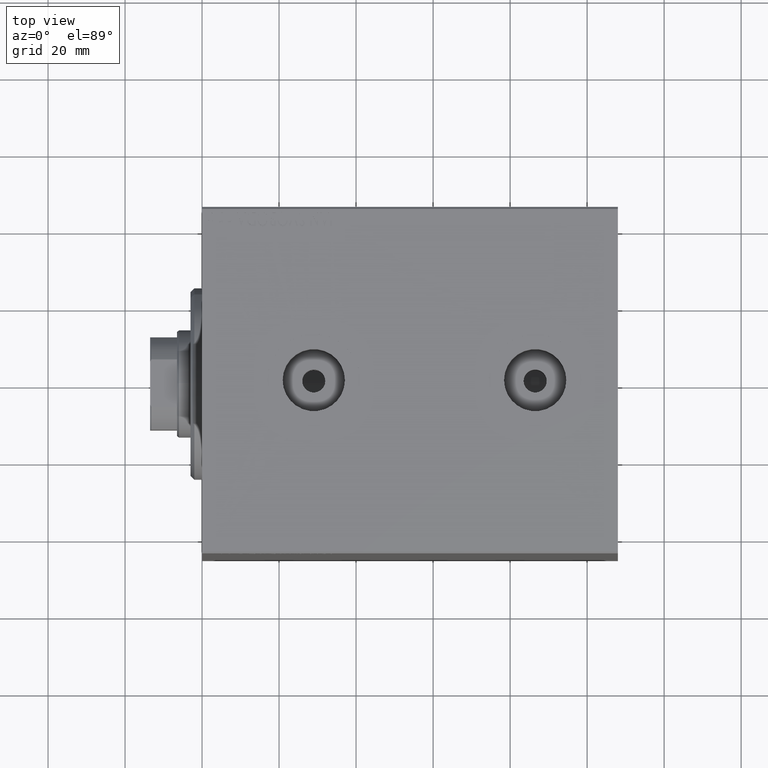
[diagram: clean part render]
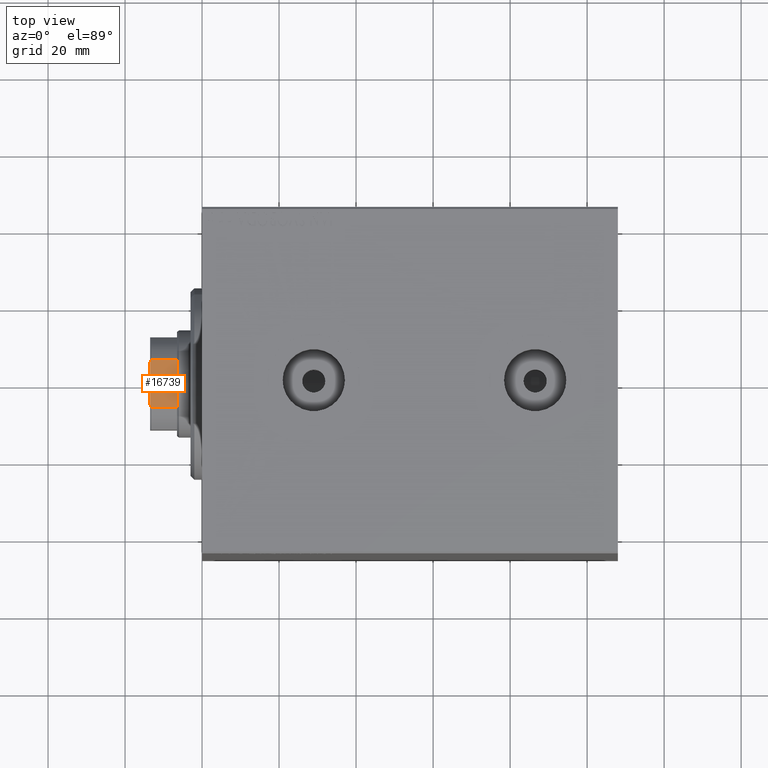
[diagram: same view with one face highlighted and labeled with its STEP entity id]
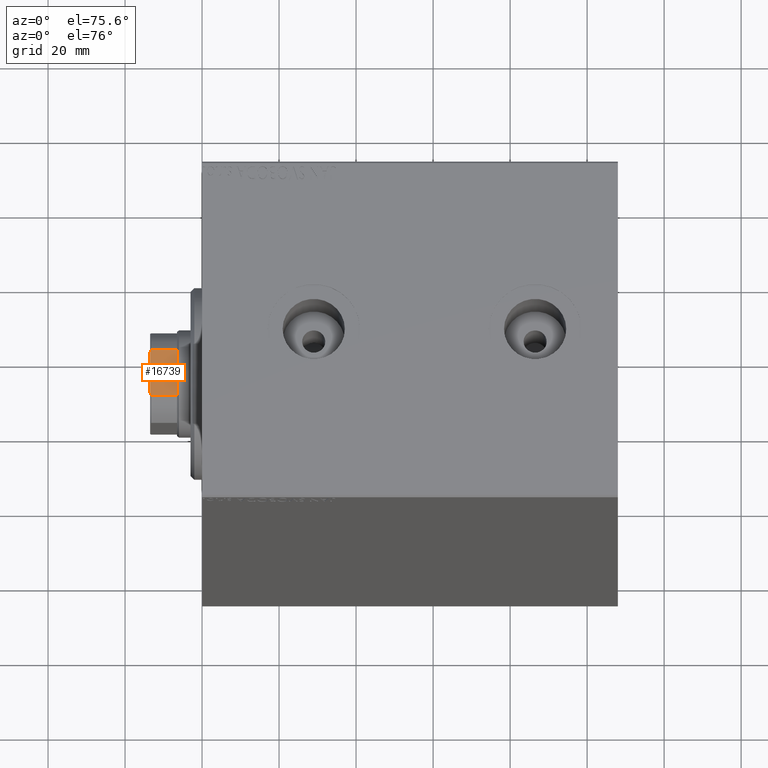
[diagram: same view with one face highlighted and labeled with its STEP entity id]
A machine part, top view. The second image highlights one B-rep face of the part: STEP entity #16739.
A second angle (auxiliary view) of the same face is appended — the face is thin or edge-on in the first view.
In plain terms, the highlighted planar face has unit normal (-0, -0, -1).
Its self-contained STEP definition (entity closure, byte-faithful):
#1160 = CARTESIAN_POINT ( 'NONE',  ( 12.00000000000000000, -5.957846001622719712, 103.8039079593495302 ) ) ;
#1556 = EDGE_CURVE ( 'NONE', #18856, #25232, #7064, .T. ) ;
#3461 = CARTESIAN_POINT ( 'NONE',  ( 12.00000000000000000, -5.499090833947013479, 104.0000000000000142 ) ) ;
#3936 = FACE_OUTER_BOUND ( 'NONE', #40683, .T. ) ;
#4585 = CARTESIAN_POINT ( 'NONE',  ( 11.99999999999999645, 11.99999999999999645, 97.00000000000000000 ) ) ;
#4601 = DIRECTION ( 'NONE',  ( -1.000000000000000000, -2.168404344971008868E-16, 0.000000000000000000 ) ) ;
#4674 = ORIENTED_EDGE ( 'NONE', *, *, #16951, .T. ) ;
#5927 = EDGE_CURVE ( 'NONE', #18856, #28099, #33416, .T. ) ;
#6472 = ORIENTED_EDGE ( 'NONE', *, *, #1556, .F. ) ;
#7064 = LINE ( 'NONE', #7501, #34316 ) ;
#7501 = CARTESIAN_POINT ( 'NONE',  ( 11.99999999999999645, 11.99999999999999645, 104.0000000000000142 ) ) ;
#8511 = CARTESIAN_POINT ( 'NONE',  ( 12.00000000000000000, -5.499090833947013479, 104.0000000000000142 ) ) ;
#9851 = VECTOR ( 'NONE', #16208, 1000.000000000000000 ) ;
#10184 = EDGE_CURVE ( 'NONE', #24177, #24475, #16155, .T. ) ;
#11982 = LINE ( 'NONE', #26234, #9851 ) ;
#12067 = CARTESIAN_POINT ( 'NONE',  ( 11.99999999999999645, -6.184658438426501981, 103.7000000000000028 ) ) ;
#12839 = B_SPLINE_CURVE_WITH_KNOTS ( 'NONE', 3,
 ( #27278, #40012, #13482, #40660 ),
 .UNSPECIFIED., .F., .F.,
 ( 4, 4 ),
 ( 0.000000000000000000, 0.0007483334419306351048 ),
 .UNSPECIFIED. ) ;
#13482 = CARTESIAN_POINT ( 'NONE',  ( 11.99999999999999822, 5.729389212963446276, 103.9040582041574226 ) ) ;
#15937 = VECTOR ( 'NONE', #32000, 1000.000000000000000 ) ;
#16155 = LINE ( 'NONE', #30167, #17460 ) ;
#16208 = DIRECTION ( 'NONE',  ( -0.000000000000000000, -0.000000000000000000, 1.000000000000000000 ) ) ;
#16338 = CARTESIAN_POINT ( 'NONE',  ( 11.99999999999999645, -6.184658438426501981, 97.00000000000000000 ) ) ;
#16575 = DIRECTION ( 'NONE',  ( -0.000000000000000000, -0.000000000000000000, 1.000000000000000000 ) ) ;
#16627 = CARTESIAN_POINT ( 'NONE',  ( 11.99999999999999645, 6.184658438426501093, 103.7000000000000028 ) ) ;
#16739 = ADVANCED_FACE ( 'NONE', ( #3936 ), #38040, .F. ) ;
#16951 = EDGE_CURVE ( 'NONE', #24475, #25232, #12839, .T. ) ;
#17460 = VECTOR ( 'NONE', #16575, 1000.000000000000000 ) ;
#17539 = DIRECTION ( 'NONE',  ( 2.168404344971008868E-16, -1.000000000000000000, 0.000000000000000000 ) ) ;
#18856 = VERTEX_POINT ( 'NONE', #3461 ) ;
#20009 = VERTEX_POINT ( 'NONE', #16338 ) ;
#20971 = ORIENTED_EDGE ( 'NONE', *, *, #36868, .T. ) ;
#21099 = DIRECTION ( 'NONE',  ( -2.168404344971008868E-16, 1.000000000000000000, -0.000000000000000000 ) ) ;
#21104 = CARTESIAN_POINT ( 'NONE',  ( 11.99999999999999645, 11.99999999999999645, 104.0000000000000142 ) ) ;
#21521 = LINE ( 'NONE', #4585, #15937 ) ;
#22089 = ORIENTED_EDGE ( 'NONE', *, *, #24391, .F. ) ;
#24177 = VERTEX_POINT ( 'NONE', #36535 ) ;
#24391 = EDGE_CURVE ( 'NONE', #20009, #28099, #11982, .T. ) ;
#24475 = VERTEX_POINT ( 'NONE', #16627 ) ;
#25232 = VERTEX_POINT ( 'NONE', #35838 ) ;
#26234 = CARTESIAN_POINT ( 'NONE',  ( 11.99999999999999645, -6.184658438426501981, -0.001000000000001000089 ) ) ;
#27278 = CARTESIAN_POINT ( 'NONE',  ( 11.99999999999999645, 6.184658438426501093, 103.7000000000000028 ) ) ;
#28044 = ORIENTED_EDGE ( 'NONE', *, *, #5927, .T. ) ;
#28099 = VERTEX_POINT ( 'NONE', #42042 ) ;
#29010 = CARTESIAN_POINT ( 'NONE',  ( 12.00000000000000000, -5.729389212963446276, 103.9040582041574226 ) ) ;
#30167 = CARTESIAN_POINT ( 'NONE',  ( 11.99999999999999645, 6.184658438426501093, -0.001000000000001000089 ) ) ;
#32000 = DIRECTION ( 'NONE',  ( -2.168404344971008868E-16, 1.000000000000000000, -0.000000000000000000 ) ) ;
#33416 = B_SPLINE_CURVE_WITH_KNOTS ( 'NONE', 3,
 ( #8511, #29010, #1160, #12067 ),
 .UNSPECIFIED., .F., .F.,
 ( 4, 4 ),
 ( 1.734723475976807094E-18, 0.0007483334419306351048 ),
 .UNSPECIFIED. ) ;
#33659 = ORIENTED_EDGE ( 'NONE', *, *, #10184, .T. ) ;
#34316 = VECTOR ( 'NONE', #21099, 1000.000000000000000 ) ;
#34597 = AXIS2_PLACEMENT_3D ( 'NONE', #21104, #4601, #17539 ) ;
#35838 = CARTESIAN_POINT ( 'NONE',  ( 11.99999999999999645, 5.499090833947010815, 104.0000000000000142 ) ) ;
#36535 = CARTESIAN_POINT ( 'NONE',  ( 11.99999999999999645, 6.184658438426501093, 97.00000000000000000 ) ) ;
#36868 = EDGE_CURVE ( 'NONE', #20009, #24177, #21521, .T. ) ;
#38040 = PLANE ( 'NONE',  #34597 ) ;
#40012 = CARTESIAN_POINT ( 'NONE',  ( 11.99999999999999645, 5.957846001622718823, 103.8039079593495302 ) ) ;
#40660 = CARTESIAN_POINT ( 'NONE',  ( 11.99999999999999645, 5.499090833947010815, 104.0000000000000142 ) ) ;
#40683 = EDGE_LOOP ( 'NONE', ( #33659, #4674, #6472, #28044, #22089, #20971 ) ) ;
#42042 = CARTESIAN_POINT ( 'NONE',  ( 11.99999999999999645, -6.184658438426501981, 103.7000000000000028 ) ) ;